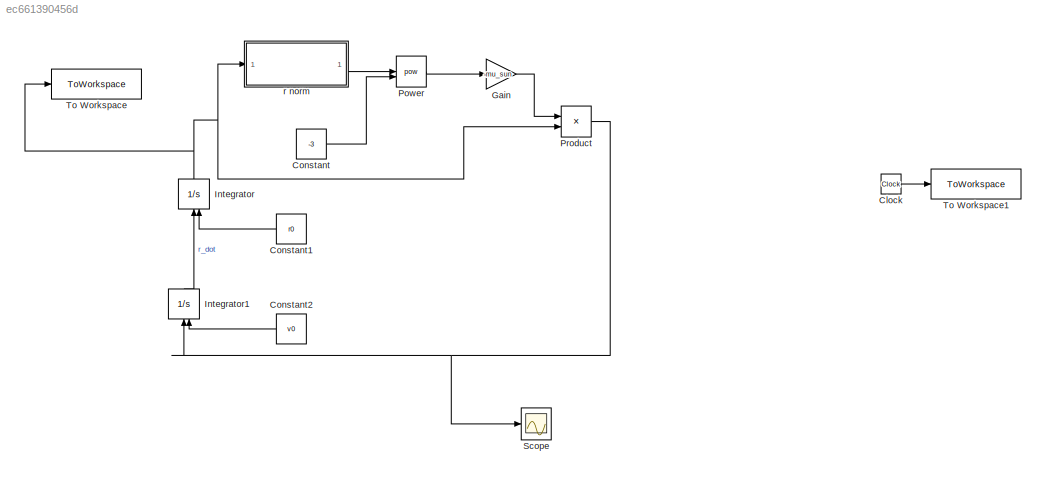
MODEL slx_ec661390456d
KIND model
CONFIG AbsTol = auto
CONFIG EnableMultiTasking = off
CONFIG FixedStep = auto
CONFIG MaxStep = auto
CONFIG MinStep = auto
CONFIG RelTol = 1e-3
CONFIG SampleTimeConstraint = Unconstrained
CONFIG SolverName = VariableStepAuto
CONFIG StartTime = t0
CONFIG StopTime = tf
BLOCK [Clock] Clock
BLOCK [Constant] Constant
  Value = -3
BLOCK [Constant] Constant1
  NameLocation = top
  Value = r0
BLOCK [Constant] Constant2
  NameLocation = top
  Value = v0
BLOCK [Gain] Gain
  Gain = -mu_sun
BLOCK [Integrator] Integrator
  InitialConditionSource = external
  NameLocation = right
BLOCK [Integrator] Integrator1
  InitialConditionSource = external
  NameLocation = right
BLOCK [Math] Power
  Operator = pow
BLOCK [Product] Product
BLOCK [Scope] Scope
  Floating = off
  NumInputPorts = 1
  ScopeSpecificationString = Simulink.scopes.TimeScopeBlockCfg('CurrentConfiguration', extmgr.ConfigurationSet(extmgr.Configuration('Core','General UI',true),extmgr.Configuration('Core','Source UI',true),extmgr.Configuration('Sources','WiredSimulink',true),extmgr.Configuration('Visuals','Time Domain',true,'SerializedDisplays',{struct('MinYLimReal','-0.0000036','MaxYLimReal','0.0000006','YLabelReal','','MinYLimMag','0.0000000'...<+1369ch>
BLOCK [ToWorkspace] To Workspace
  FixptAsFi = on
  MaxDataPoints = inf
  SampleTime = -1
  SaveFormat = Timeseries
  VariableName = position
BLOCK [ToWorkspace] To Workspace1
  FixptAsFi = on
  MaxDataPoints = inf
  SampleTime = -1
  SaveFormat = Timeseries
  VariableName = time
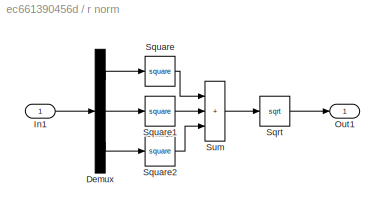
BLOCK [SubSystem] r norm
BLOCK [Demux] r norm/Demux
  Outputs = 3
BLOCK [Inport] r norm/In1
BLOCK [Outport] r norm/Out1
BLOCK [Sqrt] r norm/Sqrt
BLOCK [Math] r norm/Square
  Operator = square
BLOCK [Math] r norm/Square1
  Operator = square
BLOCK [Math] r norm/Square2
  Operator = square
BLOCK [Sum] r norm/Sum
  IconShape = rectangular
  Inputs = +++
LINE Clock:1 -> To Workspace1:1
LINE Constant1:1 -> Integrator:2
LINE Constant2:1 -> Integrator1:2
LINE Constant:1 -> Power:2
LINE Gain:1 -> Product:1
LINE Integrator1:1 -> Integrator:1
NET Integrator:1 -> Product:2, To Workspace:1, r norm:1
LINE Power:1 -> Gain:1
NET Product:1 -> Integrator1:1, Scope:1
LINE r norm/Demux:1 -> r norm/Square:1
LINE r norm/Demux:2 -> r norm/Square1:1
LINE r norm/Demux:3 -> r norm/Square2:1
LINE r norm/In1:1 -> r norm/Demux:1
LINE r norm/Sqrt:1 -> r norm/Out1:1
LINE r norm/Square1:1 -> r norm/Sum:2
LINE r norm/Square2:1 -> r norm/Sum:3
LINE r norm/Square:1 -> r norm/Sum:1
LINE r norm/Sum:1 -> r norm/Sqrt:1
LINE r norm:1 -> Power:1
note: NET lines group one-source signal fan-out (src -> all destinations, sorted); 1:1 wires keep LINE
